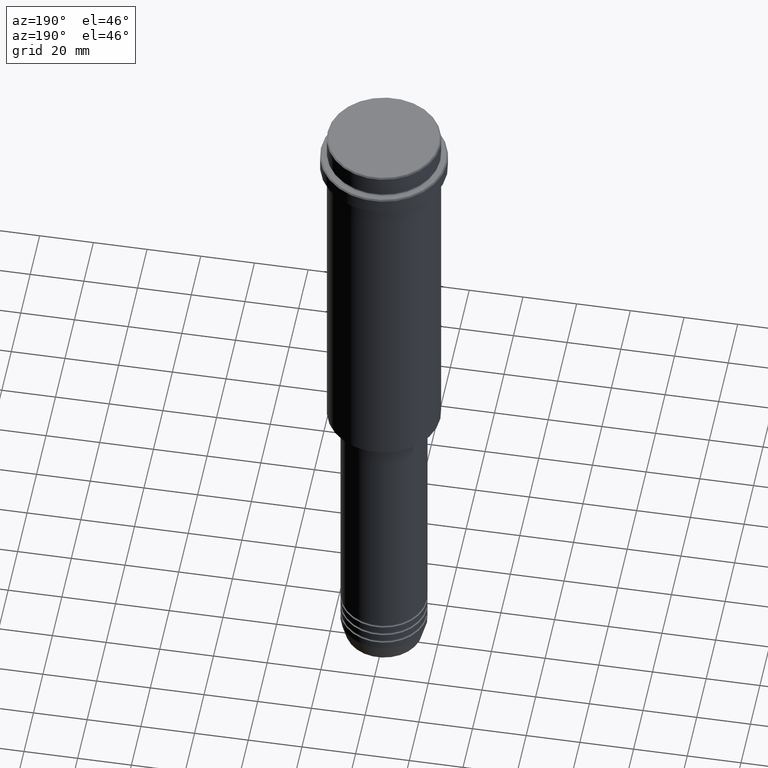
[diagram: clean part render]
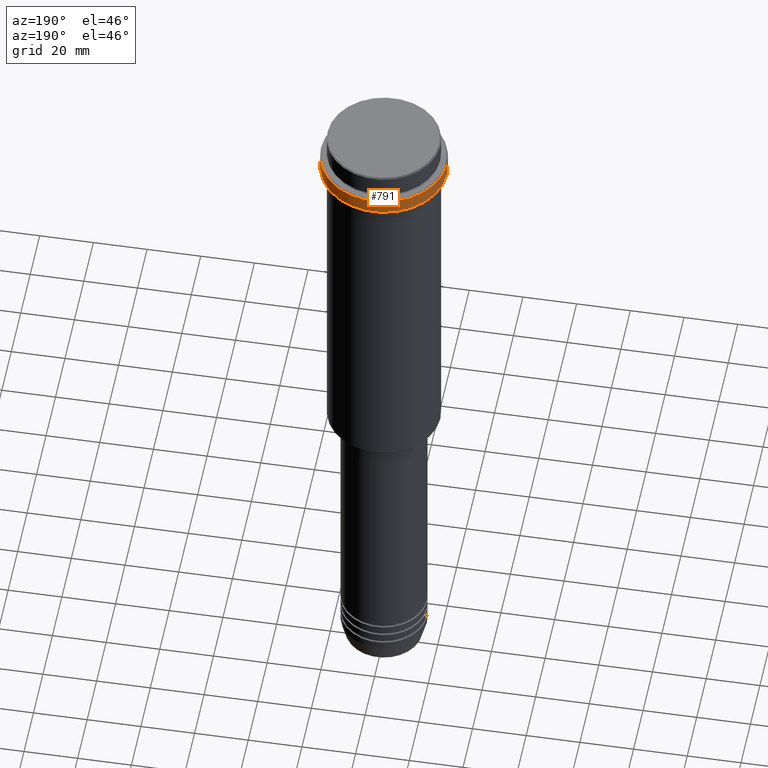
[diagram: same view with one face highlighted and labeled with its STEP entity id]
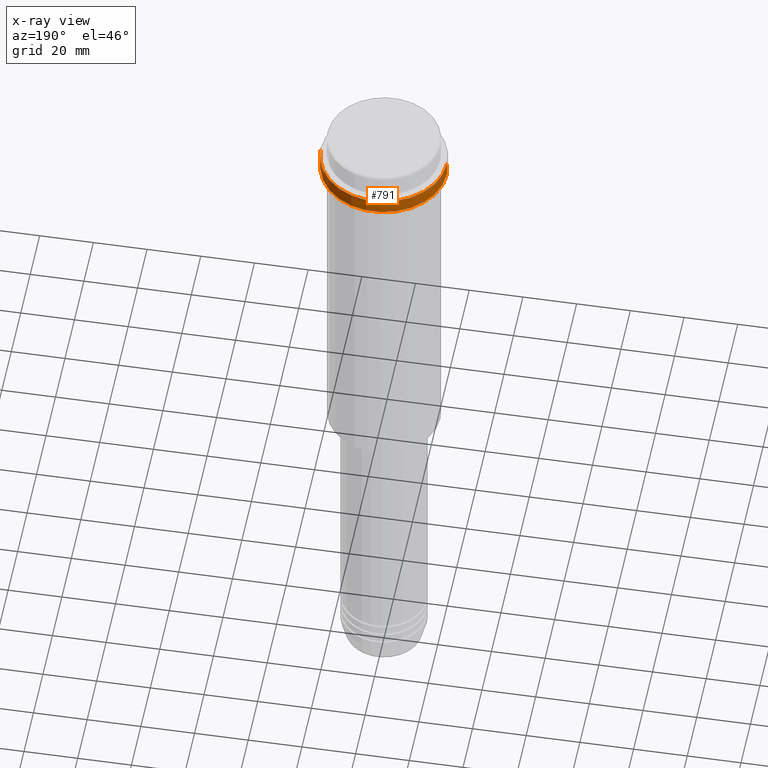
[diagram: x-ray of the same camera — body ghosted, the highlighted face saturated]
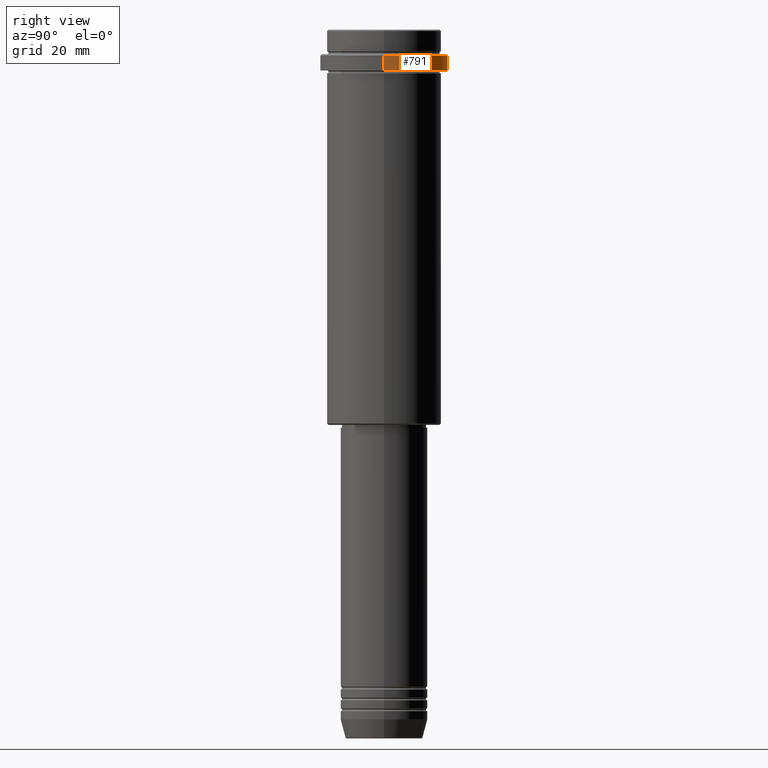
[diagram: same view with one face highlighted and labeled with its STEP entity id]
A machine part, auxiliary view. The second image highlights one B-rep face of the part: STEP entity #791.
The next image is the same camera in x-ray: the body ghosted, the highlighted face saturated — about 0% of this face is hidden behind the body in this view.
A second angle (right view) of the same face is appended — the face is thin or edge-on in the first view.
In plain terms, the highlighted cylindrical surface (partial cylindrical patch) has radius 23.5 mm, axis along (-0, -0, 1).
Its self-contained STEP definition (entity closure, byte-faithful):
#48 = CARTESIAN_POINT ( 'NONE',  ( -23.50000000000000000, 2.877919977996280320E-15, 0.000000000000000000 ) ) ;
#114 = CARTESIAN_POINT ( 'NONE',  ( 0.000000000000000000, 0.000000000000000000, -15.00000000000000000 ) ) ;
#124 = CARTESIAN_POINT ( 'NONE',  ( 0.000000000000000000, 0.000000000000000000, 0.000000000000000000 ) ) ;
#152 = LINE ( 'NONE', #48, #1345 ) ;
#185 = ORIENTED_EDGE ( 'NONE', *, *, #215, .T. ) ;
#191 = VERTEX_POINT ( 'NONE', #440 ) ;
#215 = EDGE_CURVE ( 'NONE', #800, #191, #461, .T. ) ;
#223 = AXIS2_PLACEMENT_3D ( 'NONE', #124, #450, #781 ) ;
#230 = CARTESIAN_POINT ( 'NONE',  ( 0.000000000000000000, 0.000000000000000000, -9.500000000000000000 ) ) ;
#266 = EDGE_CURVE ( 'NONE', #405, #191, #570, .T. ) ;
#405 = VERTEX_POINT ( 'NONE', #410 ) ;
#410 = CARTESIAN_POINT ( 'NONE',  ( 23.50000000000000355, 0.000000000000000000, -15.00000000000000000 ) ) ;
#425 = DIRECTION ( 'NONE',  ( -0.000000000000000000, -0.000000000000000000, 1.000000000000000000 ) ) ;
#440 = CARTESIAN_POINT ( 'NONE',  ( 23.50000000000000000, 0.000000000000000000, -9.500000000000000000 ) ) ;
#445 = EDGE_CURVE ( 'NONE', #405, #935, #1087, .T. ) ;
#450 = DIRECTION ( 'NONE',  ( -0.000000000000000000, -0.000000000000000000, 1.000000000000000000 ) ) ;
#454 = CYLINDRICAL_SURFACE ( 'NONE', #223, 23.50000000000000000 ) ;
#461 = CIRCLE ( 'NONE', #1267, 23.50000000000000000 ) ;
#570 = LINE ( 'NONE', #586, #1199 ) ;
#586 = CARTESIAN_POINT ( 'NONE',  ( 23.50000000000000000, 0.000000000000000000, 0.000000000000000000 ) ) ;
#663 = FACE_OUTER_BOUND ( 'NONE', #921, .T. ) ;
#781 = DIRECTION ( 'NONE',  ( 1.000000000000000000, 0.000000000000000000, 0.000000000000000000 ) ) ;
#791 = ADVANCED_FACE ( 'NONE', ( #663 ), #454, .T. ) ;
#800 = VERTEX_POINT ( 'NONE', #1214 ) ;
#801 = DIRECTION ( 'NONE',  ( -0.000000000000000000, -0.000000000000000000, 1.000000000000000000 ) ) ;
#845 = EDGE_CURVE ( 'NONE', #935, #800, #152, .T. ) ;
#921 = EDGE_LOOP ( 'NONE', ( #1070, #1227, #185, #1000 ) ) ;
#935 = VERTEX_POINT ( 'NONE', #1287 ) ;
#1000 = ORIENTED_EDGE ( 'NONE', *, *, #266, .F. ) ;
#1010 = DIRECTION ( 'NONE',  ( 0.000000000000000000, 0.000000000000000000, -1.000000000000000000 ) ) ;
#1023 = DIRECTION ( 'NONE',  ( 1.000000000000000000, 0.000000000000000000, 0.000000000000000000 ) ) ;
#1034 = DIRECTION ( 'NONE',  ( -0.000000000000000000, -0.000000000000000000, 1.000000000000000000 ) ) ;
#1070 = ORIENTED_EDGE ( 'NONE', *, *, #445, .T. ) ;
#1087 = CIRCLE ( 'NONE', #1414, 23.50000000000000355 ) ;
#1181 = DIRECTION ( 'NONE',  ( 1.000000000000000000, 0.000000000000000000, 0.000000000000000000 ) ) ;
#1199 = VECTOR ( 'NONE', #801, 1000.000000000000000 ) ;
#1214 = CARTESIAN_POINT ( 'NONE',  ( -23.50000000000000000, 2.877919977996280320E-15, -9.500000000000000000 ) ) ;
#1227 = ORIENTED_EDGE ( 'NONE', *, *, #845, .T. ) ;
#1267 = AXIS2_PLACEMENT_3D ( 'NONE', #230, #1010, #1023 ) ;
#1287 = CARTESIAN_POINT ( 'NONE',  ( -23.50000000000000711, 2.877919977996281109E-15, -15.00000000000000000 ) ) ;
#1345 = VECTOR ( 'NONE', #1034, 1000.000000000000000 ) ;
#1414 = AXIS2_PLACEMENT_3D ( 'NONE', #114, #425, #1181 ) ;